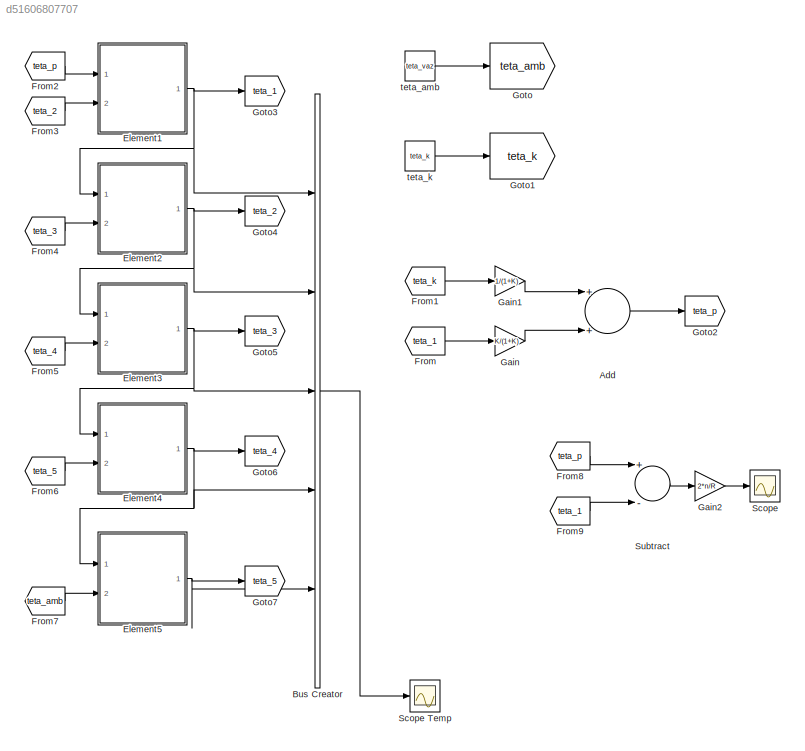
MODEL slx_d51606807707
KIND model
CONFIG AbsTol = auto
CONFIG FixedStep = auto
CONFIG MaxStep = auto
CONFIG MinStep = auto
CONFIG RelTol = 1e-3
CONFIG SampleTimeConstraint = Unconstrained
CONFIG Solver = ode45
CONFIG SolverMode = Auto
CONFIG SolverName = ode45
CONFIG StartTime = 0.0
CONFIG StopTime = 500
BLOCK [Sum] Add
  InputSameDT = off
  OutDataTypeStr = Inherit: Inherit via internal rule
  Ports = [2, 1]
  SaturateOnIntegerOverflow = off
BLOCK [BusCreator] Bus Creator
  DisplayOption = bar
  Inputs = 5
  Ports = [5, 1]
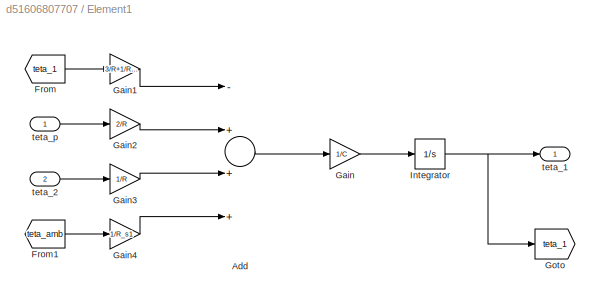
BLOCK [SubSystem] Element1
  Ports = [2, 1]
  RequestExecContextInheritance = off
BLOCK [Sum] Element1/Add
  InputSameDT = off
  Inputs = -+++
  OutDataTypeStr = Inherit: Inherit via internal rule
  Ports = [4, 1]
  SaturateOnIntegerOverflow = off
BLOCK [From] Element1/From
  GotoTag = teta_1
BLOCK [From] Element1/From1
  GotoTag = teta_amb
  TagVisibility = global
BLOCK [Gain] Element1/Gain
  Gain = 1/C
  OutDataTypeStr = Inherit: Inherit via internal rule
  ParamDataTypeStr = Inherit: Inherit via internal rule
  SaturateOnIntegerOverflow = off
BLOCK [Gain] Element1/Gain1
  Gain = 3/R+1/R_s1
  OutDataTypeStr = Inherit: Inherit via internal rule
  ParamDataTypeStr = Inherit: Inherit via internal rule
  SaturateOnIntegerOverflow = off
BLOCK [Gain] Element1/Gain2
  Gain = 2/R
  OutDataTypeStr = Inherit: Inherit via internal rule
  ParamDataTypeStr = Inherit: Inherit via internal rule
  SaturateOnIntegerOverflow = off
BLOCK [Gain] Element1/Gain3
  Gain = 1/R
  OutDataTypeStr = Inherit: Inherit via internal rule
  ParamDataTypeStr = Inherit: Inherit via internal rule
  SaturateOnIntegerOverflow = off
BLOCK [Gain] Element1/Gain4
  Gain = 1/R_s1
  OutDataTypeStr = Inherit: Inherit via internal rule
  ParamDataTypeStr = Inherit: Inherit via internal rule
  SaturateOnIntegerOverflow = off
BLOCK [Goto] Element1/Goto
  GotoTag = teta_1
BLOCK [Integrator] Element1/Integrator
  InitialCondition = teta_vaz
  Ports = [1, 1]
BLOCK [Outport] Element1/teta_1
  IconDisplay = Port number
BLOCK [Inport] Element1/teta_2
  IconDisplay = Port number
  Port = 2
BLOCK [Inport] Element1/teta_p
  IconDisplay = Port number
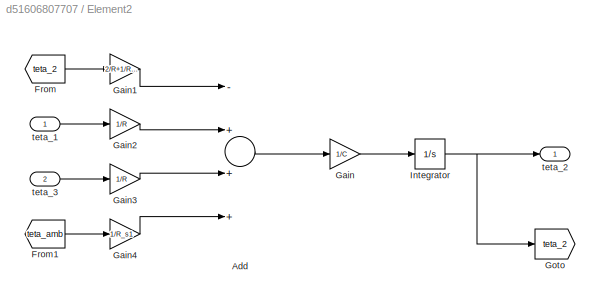
BLOCK [SubSystem] Element2
  Ports = [2, 1]
  RequestExecContextInheritance = off
BLOCK [Sum] Element2/Add
  InputSameDT = off
  Inputs = -+++
  OutDataTypeStr = Inherit: Inherit via internal rule
  Ports = [4, 1]
  SaturateOnIntegerOverflow = off
BLOCK [From] Element2/From
  GotoTag = teta_2
BLOCK [From] Element2/From1
  GotoTag = teta_amb
  TagVisibility = global
BLOCK [Gain] Element2/Gain
  Gain = 1/C
  OutDataTypeStr = Inherit: Inherit via internal rule
  ParamDataTypeStr = Inherit: Inherit via internal rule
  SaturateOnIntegerOverflow = off
BLOCK [Gain] Element2/Gain1
  Gain = 2/R+1/R_s1
  OutDataTypeStr = Inherit: Inherit via internal rule
  ParamDataTypeStr = Inherit: Inherit via internal rule
  SaturateOnIntegerOverflow = off
BLOCK [Gain] Element2/Gain2
  Gain = 1/R
  OutDataTypeStr = Inherit: Inherit via internal rule
  ParamDataTypeStr = Inherit: Inherit via internal rule
  SaturateOnIntegerOverflow = off
BLOCK [Gain] Element2/Gain3
  Gain = 1/R
  OutDataTypeStr = Inherit: Inherit via internal rule
  ParamDataTypeStr = Inherit: Inherit via internal rule
  SaturateOnIntegerOverflow = off
BLOCK [Gain] Element2/Gain4
  Gain = 1/R_s1
  OutDataTypeStr = Inherit: Inherit via internal rule
  ParamDataTypeStr = Inherit: Inherit via internal rule
  SaturateOnIntegerOverflow = off
BLOCK [Goto] Element2/Goto
  GotoTag = teta_2
BLOCK [Integrator] Element2/Integrator
  InitialCondition = teta_vaz
  Ports = [1, 1]
BLOCK [Inport] Element2/teta_1
  IconDisplay = Port number
BLOCK [Outport] Element2/teta_2
  IconDisplay = Port number
BLOCK [Inport] Element2/teta_3
  IconDisplay = Port number
  Port = 2
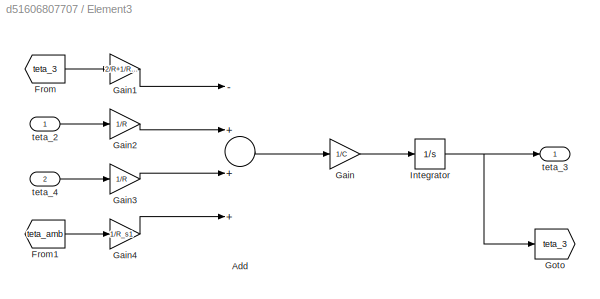
BLOCK [SubSystem] Element3
  Ports = [2, 1]
  RequestExecContextInheritance = off
BLOCK [Sum] Element3/Add
  InputSameDT = off
  Inputs = -+++
  OutDataTypeStr = Inherit: Inherit via internal rule
  Ports = [4, 1]
  SaturateOnIntegerOverflow = off
BLOCK [From] Element3/From
  GotoTag = teta_3
BLOCK [From] Element3/From1
  GotoTag = teta_amb
  TagVisibility = global
BLOCK [Gain] Element3/Gain
  Gain = 1/C
  OutDataTypeStr = Inherit: Inherit via internal rule
  ParamDataTypeStr = Inherit: Inherit via internal rule
  SaturateOnIntegerOverflow = off
BLOCK [Gain] Element3/Gain1
  Gain = 2/R+1/R_s1
  OutDataTypeStr = Inherit: Inherit via internal rule
  ParamDataTypeStr = Inherit: Inherit via internal rule
  SaturateOnIntegerOverflow = off
BLOCK [Gain] Element3/Gain2
  Gain = 1/R
  OutDataTypeStr = Inherit: Inherit via internal rule
  ParamDataTypeStr = Inherit: Inherit via internal rule
  SaturateOnIntegerOverflow = off
BLOCK [Gain] Element3/Gain3
  Gain = 1/R
  OutDataTypeStr = Inherit: Inherit via internal rule
  ParamDataTypeStr = Inherit: Inherit via internal rule
  SaturateOnIntegerOverflow = off
BLOCK [Gain] Element3/Gain4
  Gain = 1/R_s1
  OutDataTypeStr = Inherit: Inherit via internal rule
  ParamDataTypeStr = Inherit: Inherit via internal rule
  SaturateOnIntegerOverflow = off
BLOCK [Goto] Element3/Goto
  GotoTag = teta_3
BLOCK [Integrator] Element3/Integrator
  InitialCondition = teta_vaz
  Ports = [1, 1]
BLOCK [Inport] Element3/teta_2
  IconDisplay = Port number
BLOCK [Outport] Element3/teta_3
  IconDisplay = Port number
BLOCK [Inport] Element3/teta_4
  IconDisplay = Port number
  Port = 2
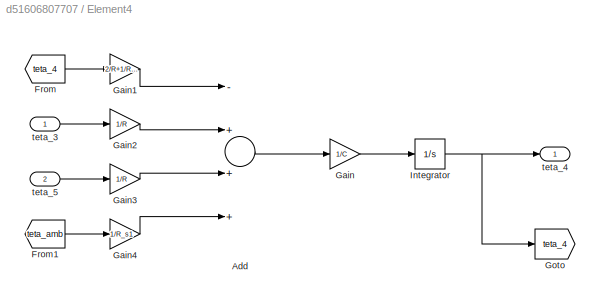
BLOCK [SubSystem] Element4
  Ports = [2, 1]
  RequestExecContextInheritance = off
BLOCK [Sum] Element4/Add
  InputSameDT = off
  Inputs = -+++
  OutDataTypeStr = Inherit: Inherit via internal rule
  Ports = [4, 1]
  SaturateOnIntegerOverflow = off
BLOCK [From] Element4/From
  GotoTag = teta_4
BLOCK [From] Element4/From1
  GotoTag = teta_amb
  TagVisibility = global
BLOCK [Gain] Element4/Gain
  Gain = 1/C
  OutDataTypeStr = Inherit: Inherit via internal rule
  ParamDataTypeStr = Inherit: Inherit via internal rule
  SaturateOnIntegerOverflow = off
BLOCK [Gain] Element4/Gain1
  Gain = 2/R+1/R_s1
  OutDataTypeStr = Inherit: Inherit via internal rule
  ParamDataTypeStr = Inherit: Inherit via internal rule
  SaturateOnIntegerOverflow = off
BLOCK [Gain] Element4/Gain2
  Gain = 1/R
  OutDataTypeStr = Inherit: Inherit via internal rule
  ParamDataTypeStr = Inherit: Inherit via internal rule
  SaturateOnIntegerOverflow = off
BLOCK [Gain] Element4/Gain3
  Gain = 1/R
  OutDataTypeStr = Inherit: Inherit via internal rule
  ParamDataTypeStr = Inherit: Inherit via internal rule
  SaturateOnIntegerOverflow = off
BLOCK [Gain] Element4/Gain4
  Gain = 1/R_s1
  OutDataTypeStr = Inherit: Inherit via internal rule
  ParamDataTypeStr = Inherit: Inherit via internal rule
  SaturateOnIntegerOverflow = off
BLOCK [Goto] Element4/Goto
  GotoTag = teta_4
BLOCK [Integrator] Element4/Integrator
  InitialCondition = teta_vaz
  Ports = [1, 1]
BLOCK [Inport] Element4/teta_3
  IconDisplay = Port number
BLOCK [Outport] Element4/teta_4
  IconDisplay = Port number
BLOCK [Inport] Element4/teta_5
  IconDisplay = Port number
  Port = 2
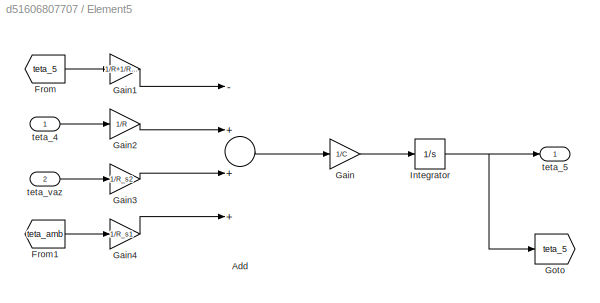
BLOCK [SubSystem] Element5
  Ports = [2, 1]
  RequestExecContextInheritance = off
BLOCK [Sum] Element5/Add
  InputSameDT = off
  Inputs = -+++
  OutDataTypeStr = Inherit: Inherit via internal rule
  Ports = [4, 1]
  SaturateOnIntegerOverflow = off
BLOCK [From] Element5/From
  GotoTag = teta_5
BLOCK [From] Element5/From1
  GotoTag = teta_amb
  TagVisibility = global
BLOCK [Gain] Element5/Gain
  Gain = 1/C
  OutDataTypeStr = Inherit: Inherit via internal rule
  ParamDataTypeStr = Inherit: Inherit via internal rule
  SaturateOnIntegerOverflow = off
BLOCK [Gain] Element5/Gain1
  Gain = 1/R+1/R_s1+1/R_s2
  OutDataTypeStr = Inherit: Inherit via internal rule
  ParamDataTypeStr = Inherit: Inherit via internal rule
  SaturateOnIntegerOverflow = off
BLOCK [Gain] Element5/Gain2
  Gain = 1/R
  OutDataTypeStr = Inherit: Inherit via internal rule
  ParamDataTypeStr = Inherit: Inherit via internal rule
  SaturateOnIntegerOverflow = off
BLOCK [Gain] Element5/Gain3
  Gain = 1/R_s2
  OutDataTypeStr = Inherit: Inherit via internal rule
  ParamDataTypeStr = Inherit: Inherit via internal rule
  SaturateOnIntegerOverflow = off
BLOCK [Gain] Element5/Gain4
  Gain = 1/R_s1
  OutDataTypeStr = Inherit: Inherit via internal rule
  ParamDataTypeStr = Inherit: Inherit via internal rule
  SaturateOnIntegerOverflow = off
BLOCK [Goto] Element5/Goto
  GotoTag = teta_5
BLOCK [Integrator] Element5/Integrator
  InitialCondition = teta_vaz
  Ports = [1, 1]
BLOCK [Inport] Element5/teta_4
  IconDisplay = Port number
BLOCK [Outport] Element5/teta_5
  IconDisplay = Port number
BLOCK [Inport] Element5/teta_vaz
  IconDisplay = Port number
  Port = 2
BLOCK [From] From
  GotoTag = teta_1
BLOCK [From] From1
  GotoTag = teta_k
BLOCK [From] From2
  GotoTag = teta_p
BLOCK [From] From3
  GotoTag = teta_2
BLOCK [From] From4
  GotoTag = teta_3
BLOCK [From] From5
  GotoTag = teta_4
BLOCK [From] From6
  GotoTag = teta_5
BLOCK [From] From7
  GotoTag = teta_amb
  TagVisibility = global
BLOCK [From] From8
  GotoTag = teta_p
BLOCK [From] From9
  GotoTag = teta_1
BLOCK [Gain] Gain
  Gain = K/(1+K)
  OutDataTypeStr = Inherit: Inherit via internal rule
  ParamDataTypeStr = Inherit: Inherit via internal rule
  SaturateOnIntegerOverflow = off
BLOCK [Gain] Gain1
  Gain = 1/(1+K)
  OutDataTypeStr = Inherit: Inherit via internal rule
  ParamDataTypeStr = Inherit: Inherit via internal rule
  SaturateOnIntegerOverflow = off
BLOCK [Gain] Gain2
  Gain = 2*n/R
  OutDataTypeStr = Inherit: Inherit via internal rule
  ParamDataTypeStr = Inherit: Inherit via internal rule
  SaturateOnIntegerOverflow = off
BLOCK [Goto] Goto
  GotoTag = teta_amb
  TagVisibility = global
BLOCK [Goto] Goto1
  GotoTag = teta_k
BLOCK [Goto] Goto2
  GotoTag = teta_p
BLOCK [Goto] Goto3
  GotoTag = teta_1
BLOCK [Goto] Goto4
  GotoTag = teta_2
BLOCK [Goto] Goto5
  GotoTag = teta_3
BLOCK [Goto] Goto6
  GotoTag = teta_4
BLOCK [Goto] Goto7
  GotoTag = teta_5
BLOCK [Scope] Scope
  DataFormat = StructureWithTime
  Floating = off
  NumInputPorts = 1
  Ports = [1]
  SampleTime = 0
BLOCK [Scope] Scope Temp
  Floating = off
  NumInputPorts = 1
  Ports = [1]
  SaveName = ScopeData1
  TimeRange = 200
  YMax = 74.28979143798024
  YMin = 58.28979143798024
BLOCK [Sum] Subtract
  InputSameDT = off
  Inputs = +-
  OutDataTypeStr = Inherit: Inherit via internal rule
  Ports = [2, 1]
  SaturateOnIntegerOverflow = off
BLOCK [Constant] teta_amb
  Value = teta_vaz
BLOCK [Constant] teta_k
  Value = teta_k
LINE Add:1 -> Goto2:1
LINE Bus Creator:1 -> Scope Temp:1
LINE Element1/Add:1 -> Element1/Gain:1
LINE Element1/From1:1 -> Element1/Gain4:1
LINE Element1/From:1 -> Element1/Gain1:1
LINE Element1/Gain1:1 -> Element1/Add:1
LINE Element1/Gain2:1 -> Element1/Add:2
LINE Element1/Gain3:1 -> Element1/Add:3
LINE Element1/Gain4:1 -> Element1/Add:4
LINE Element1/Gain:1 -> Element1/Integrator:1
NET Element1/Integrator:1 -> Element1/Goto:1, Element1/teta_1:1
LINE Element1/teta_2:1 -> Element1/Gain3:1
LINE Element1/teta_p:1 -> Element1/Gain2:1
NET Element1:1 -> Bus Creator:1, Element2:1, Goto3:1
LINE Element2/Add:1 -> Element2/Gain:1
LINE Element2/From1:1 -> Element2/Gain4:1
LINE Element2/From:1 -> Element2/Gain1:1
LINE Element2/Gain1:1 -> Element2/Add:1
LINE Element2/Gain2:1 -> Element2/Add:2
LINE Element2/Gain3:1 -> Element2/Add:3
LINE Element2/Gain4:1 -> Element2/Add:4
LINE Element2/Gain:1 -> Element2/Integrator:1
NET Element2/Integrator:1 -> Element2/Goto:1, Element2/teta_2:1
LINE Element2/teta_1:1 -> Element2/Gain2:1
LINE Element2/teta_3:1 -> Element2/Gain3:1
NET Element2:1 -> Bus Creator:2, Element3:1, Goto4:1
LINE Element3/Add:1 -> Element3/Gain:1
LINE Element3/From1:1 -> Element3/Gain4:1
LINE Element3/From:1 -> Element3/Gain1:1
LINE Element3/Gain1:1 -> Element3/Add:1
LINE Element3/Gain2:1 -> Element3/Add:2
LINE Element3/Gain3:1 -> Element3/Add:3
LINE Element3/Gain4:1 -> Element3/Add:4
LINE Element3/Gain:1 -> Element3/Integrator:1
NET Element3/Integrator:1 -> Element3/Goto:1, Element3/teta_3:1
LINE Element3/teta_2:1 -> Element3/Gain2:1
LINE Element3/teta_4:1 -> Element3/Gain3:1
NET Element3:1 -> Bus Creator:3, Element4:1, Goto5:1
LINE Element4/Add:1 -> Element4/Gain:1
LINE Element4/From1:1 -> Element4/Gain4:1
LINE Element4/From:1 -> Element4/Gain1:1
LINE Element4/Gain1:1 -> Element4/Add:1
LINE Element4/Gain2:1 -> Element4/Add:2
LINE Element4/Gain3:1 -> Element4/Add:3
LINE Element4/Gain4:1 -> Element4/Add:4
LINE Element4/Gain:1 -> Element4/Integrator:1
NET Element4/Integrator:1 -> Element4/Goto:1, Element4/teta_4:1
LINE Element4/teta_3:1 -> Element4/Gain2:1
LINE Element4/teta_5:1 -> Element4/Gain3:1
NET Element4:1 -> Bus Creator:4, Element5:1, Goto6:1
LINE Element5/Add:1 -> Element5/Gain:1
LINE Element5/From1:1 -> Element5/Gain4:1
LINE Element5/From:1 -> Element5/Gain1:1
LINE Element5/Gain1:1 -> Element5/Add:1
LINE Element5/Gain2:1 -> Element5/Add:2
LINE Element5/Gain3:1 -> Element5/Add:3
LINE Element5/Gain4:1 -> Element5/Add:4
LINE Element5/Gain:1 -> Element5/Integrator:1
NET Element5/Integrator:1 -> Element5/Goto:1, Element5/teta_5:1
LINE Element5/teta_4:1 -> Element5/Gain2:1
LINE Element5/teta_vaz:1 -> Element5/Gain3:1
NET Element5:1 -> Bus Creator:5, Goto7:1
LINE From1:1 -> Gain1:1
LINE From2:1 -> Element1:1
LINE From3:1 -> Element1:2
LINE From4:1 -> Element2:2
LINE From5:1 -> Element3:2
LINE From6:1 -> Element4:2
LINE From7:1 -> Element5:2
LINE From8:1 -> Subtract:1
LINE From9:1 -> Subtract:2
LINE From:1 -> Gain:1
LINE Gain1:1 -> Add:1
LINE Gain2:1 -> Scope:1
LINE Gain:1 -> Add:2
LINE Subtract:1 -> Gain2:1
LINE teta_amb:1 -> Goto:1
LINE teta_k:1 -> Goto1:1
note: NET lines group one-source signal fan-out (src -> all destinations, sorted); 1:1 wires keep LINE
